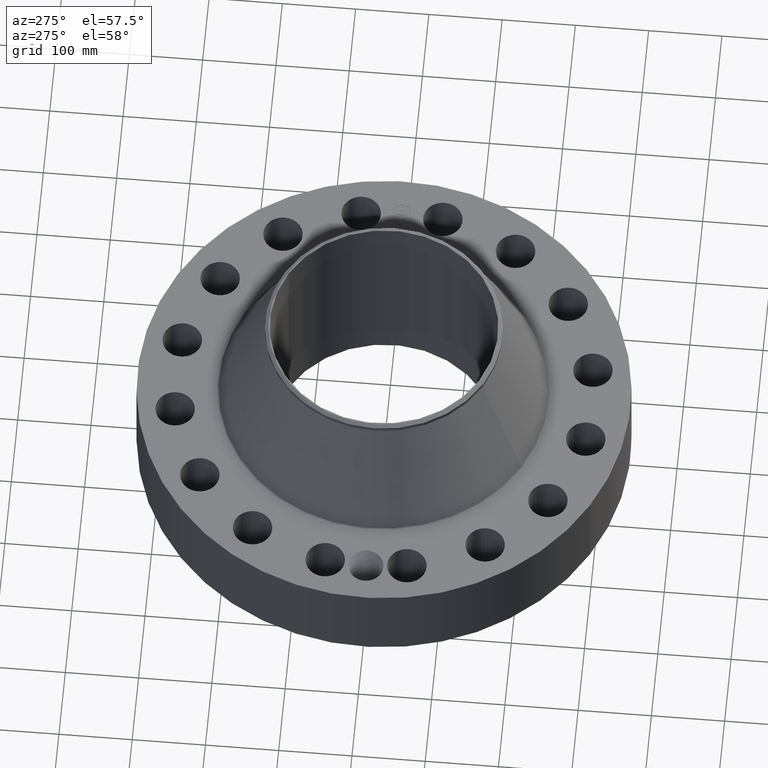
[diagram: clean part render]
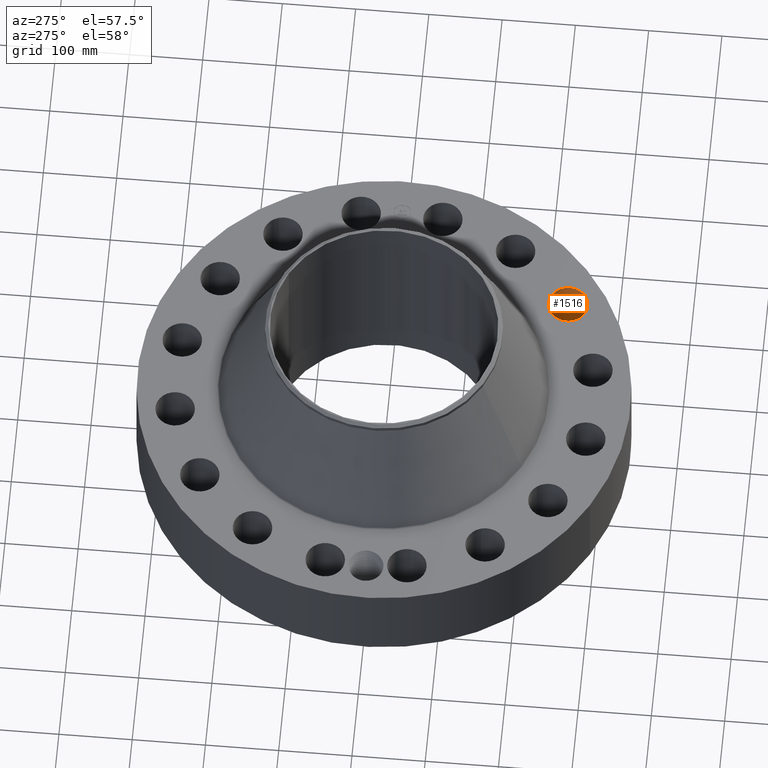
[diagram: same view with one face highlighted and labeled with its STEP entity id]
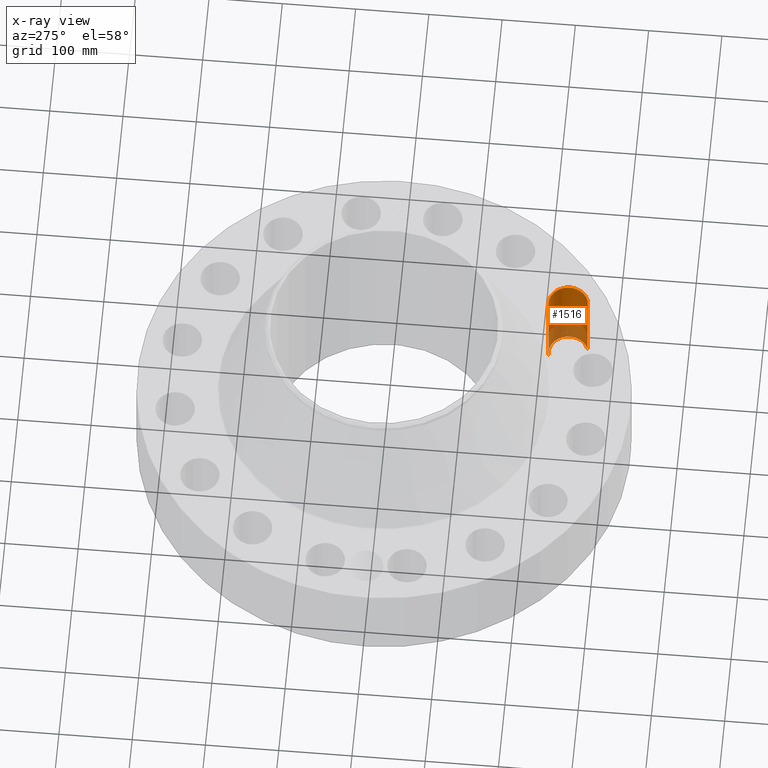
[diagram: x-ray of the same camera — body ghosted, the highlighted face saturated]
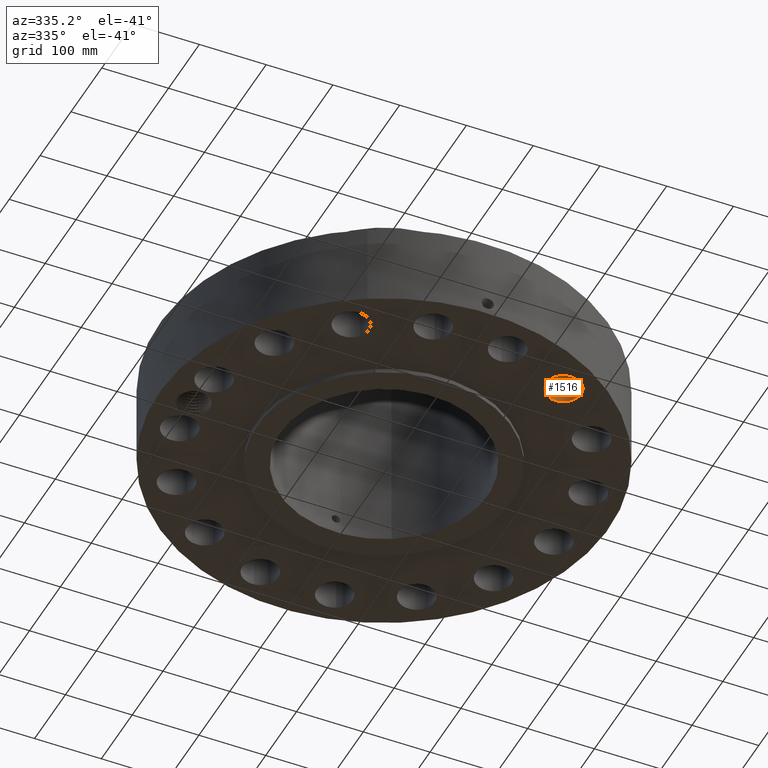
[diagram: same view with one face highlighted and labeled with its STEP entity id]
A machine part, auxiliary view. The second image highlights one B-rep face of the part: STEP entity #1516.
The next image is the same camera in x-ray: the body ghosted, the highlighted face saturated — about 32% of this face is hidden behind the body in this view.
A second angle (auxiliary view) of the same face is appended — the face is thin or edge-on in the first view.
In plain terms, the highlighted cylindrical surface (edge-blend (fillet) strip) has radius 26.924 mm, axis along (0, -0, -1).
Its self-contained STEP definition (entity closure, byte-faithful):
#298=AXIS2_PLACEMENT_3D('Circle Axis2P3D',#296,#297,$) ;
#780=AXIS2_PLACEMENT_3D('Circle Axis2P3D',#778,#779,$) ;
#1498=AXIS2_PLACEMENT_3D('Cylinder Axis2P3D',#1495,#1496,#1497) ;
#296=CARTESIAN_POINT('Axis2P3D Location',(6.2501651215,-9.35403313844,0.250000000001)) ;
#300=CARTESIAN_POINT('Vertex',(5.95173321848,-8.33691053065,0.250000000001)) ;
#302=CARTESIAN_POINT('Vertex',(6.54859702451,-10.3711557462,0.250000000001)) ;
#773=CARTESIAN_POINT('Vertex',(6.54859702451,-10.3711557462,5.13000000002)) ;
#775=CARTESIAN_POINT('Vertex',(5.95173321848,-8.33691053065,5.13000000002)) ;
#778=CARTESIAN_POINT('Axis2P3D Location',(6.2501651215,-9.35403313844,5.13000000002)) ;
#1495=CARTESIAN_POINT('Axis2P3D Location',(6.2501651215,-9.35403313844,5.12606299215)) ;
#1500=CARTESIAN_POINT('Line Origine',(5.95173321848,-8.33691053065,2.69000000001)) ;
#1505=CARTESIAN_POINT('Line Origine',(6.54859702451,-10.3711557462,2.69000000001)) ;
#297=DIRECTION('Axis2P3D Direction',(0.,0.,-0.0393700787402)) ;
#779=DIRECTION('Axis2P3D Direction',(0.,0.,-0.0393700787402)) ;
#1496=DIRECTION('Axis2P3D Direction',(0.,-0.,-0.0393700787402)) ;
#1497=DIRECTION('Axis2P3D XDirection',(0.0110842335096,-0.0377775444876,0.)) ;
#1501=DIRECTION('Vector Direction',(0.,0.,-0.0393700787402)) ;
#1506=DIRECTION('Vector Direction',(0.,0.,-0.0393700787402)) ;
#1502=VECTOR('Line Direction',#1501,0.0393700787402) ;
#1507=VECTOR('Line Direction',#1506,0.0393700787402) ;
#1511=ORIENTED_EDGE('',*,*,#1504,.F.) ;
#1512=ORIENTED_EDGE('',*,*,#304,.T.) ;
#1513=ORIENTED_EDGE('',*,*,#1509,.T.) ;
#1514=ORIENTED_EDGE('',*,*,#782,.F.) ;
#1516=ADVANCED_FACE('PartBody',(#1515),#1499,.F.) ;
#299=CIRCLE('generated circle',#298,1.06) ;
#781=CIRCLE('generated circle',#780,1.06) ;
#1499=CYLINDRICAL_SURFACE('generated cylinder',#1498,1.06) ;
#304=EDGE_CURVE('',#301,#303,#299,.T.) ;
#782=EDGE_CURVE('',#776,#774,#781,.T.) ;
#1504=EDGE_CURVE('',#301,#776,#1503,.F.) ;
#1509=EDGE_CURVE('',#303,#774,#1508,.F.) ;
#1510=EDGE_LOOP('',(#1511,#1512,#1513,#1514)) ;
#1515=FACE_OUTER_BOUND('',#1510,.T.) ;
#1503=LINE('Line',#1500,#1502) ;
#1508=LINE('Line',#1505,#1507) ;
#301=VERTEX_POINT('',#300) ;
#303=VERTEX_POINT('',#302) ;
#774=VERTEX_POINT('',#773) ;
#776=VERTEX_POINT('',#775) ;